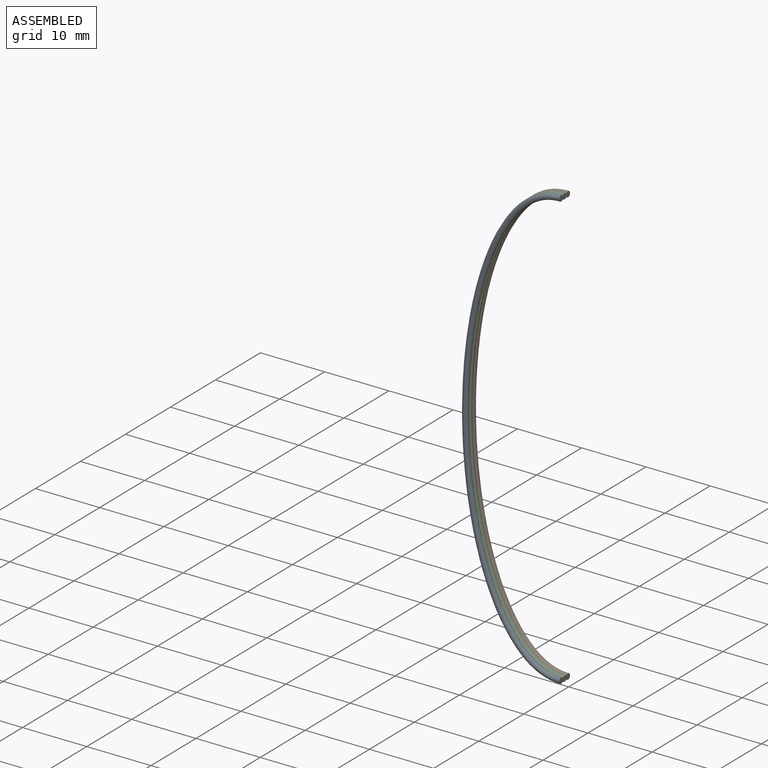
[diagram: assembled view]
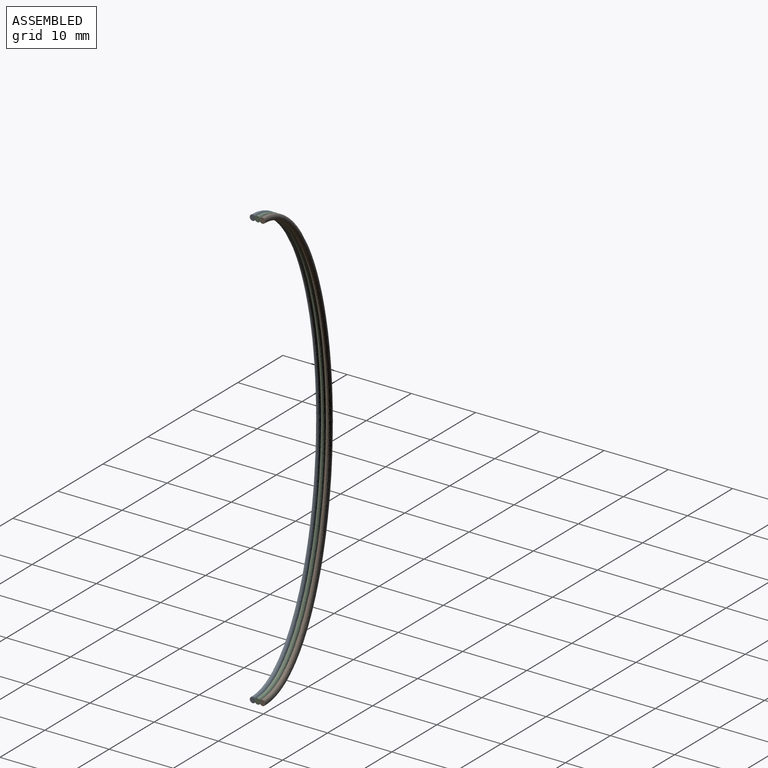
[diagram: assembled view, second angle]
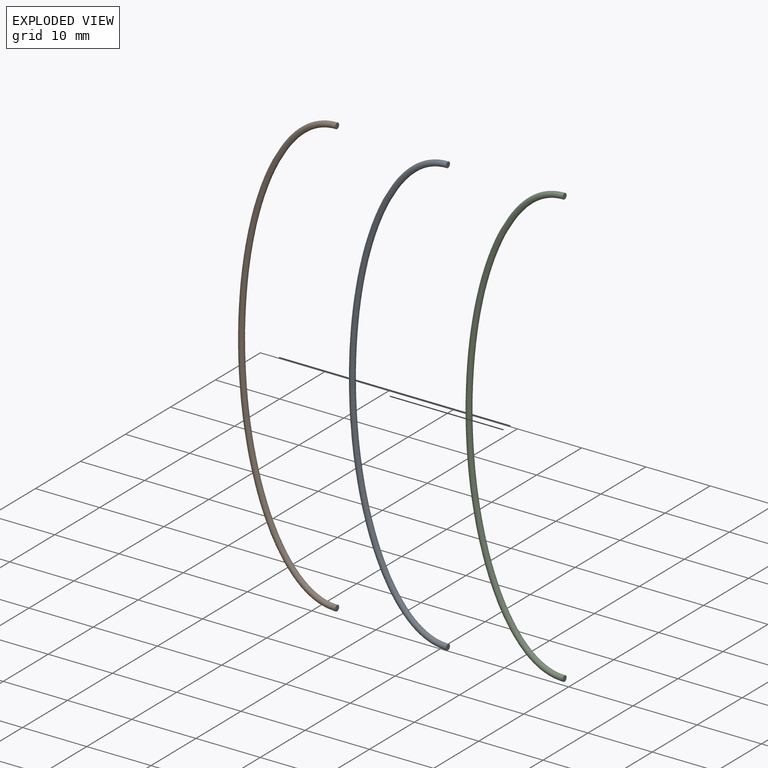
[diagram: exploded view]
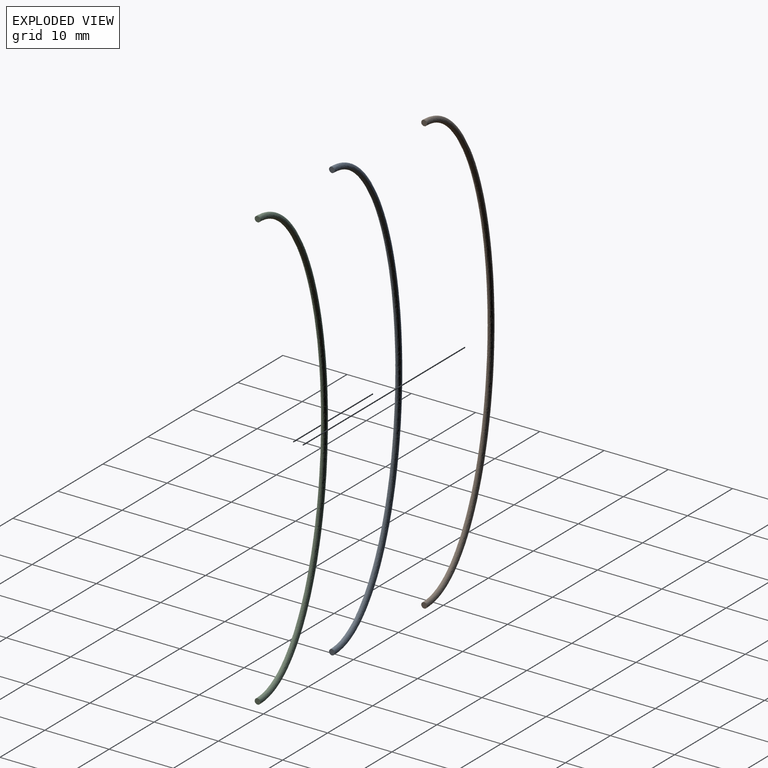
[diagram: exploded view, second angle]
ASSEMBLY  parts=3 mates=2
PART A: 3 faces, bbox 15.8x0.9x69.6 mm
  f0: plane 0.89x0.89mm, normal (1,0,0), area 0.6mm2, adj f2
  f1: plane 0.89x0.89mm, normal (1,0,0), area 0.6mm2, adj f2
  f2: bspline ~69.62x15.76mm, area 223.2mm2, adj f0,f1
PART B: 3 faces, bbox 15.8x0.9x69.6 mm
  f0: plane 0.89x0.89mm, normal (1,0,0), area 0.6mm2, adj f2
  f1: plane 0.89x0.89mm, normal (1,0,0), area 0.6mm2, adj f2
  f2: bspline ~69.62x15.76mm, area 223.2mm2, adj f0,f1
PART C: 3 faces, bbox 15.8x0.9x69.6 mm
  f0: plane 0.89x0.89mm, normal (1,0,0), area 0.6mm2, adj f2
  f1: plane 0.89x0.89mm, normal (1,0,0), area 0.6mm2, adj f2
  f2: bspline ~69.62x15.76mm, area 223.2mm2, adj f0,f1
PLACE A t=(0,971.5,0)mm
PLACE B t=(0,971.25,0)mm
PLACE C t=(0,971.37,0)mm
MATE fastened C.f1 <-> B.f1  axis (1,0,0) through (0,1109.1,-31.39)mm
MATE fastened C.f1 <-> A.f1  axis (1,0,0) through (0,1109.1,-31.39)mm
